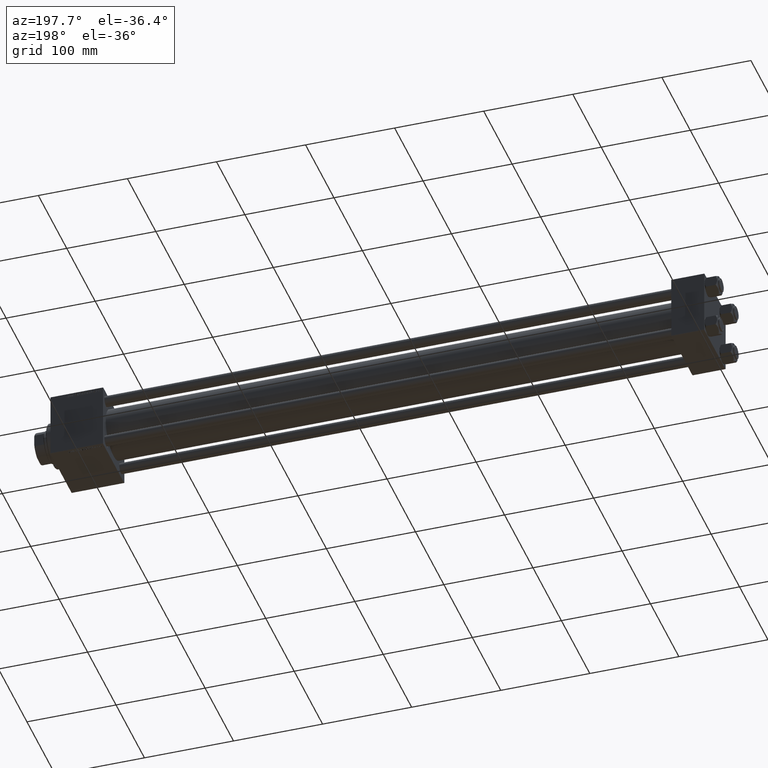
[diagram: clean part render]
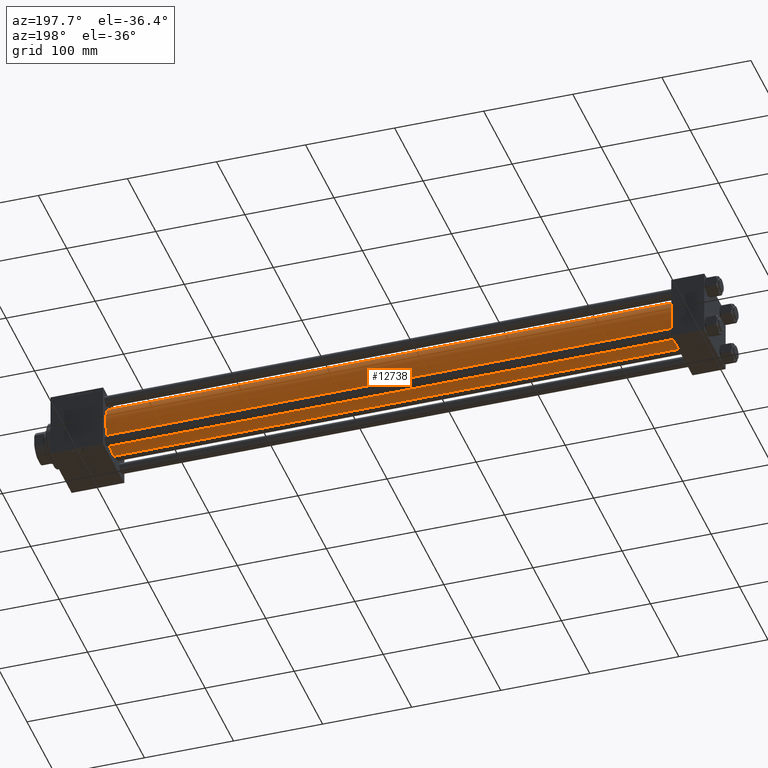
[diagram: same view with one face highlighted and labeled with its STEP entity id]
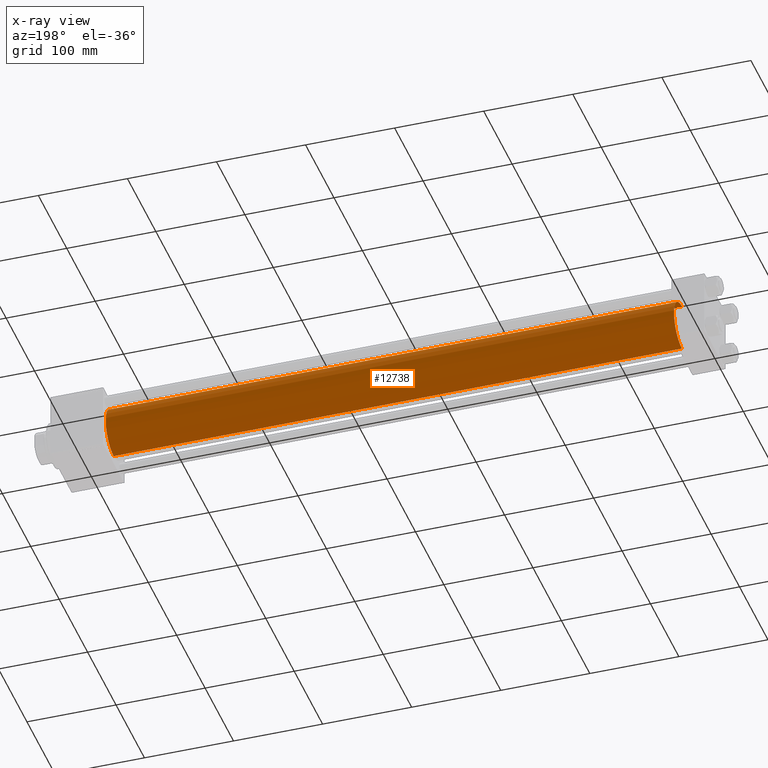
[diagram: x-ray of the same camera — body ghosted, the highlighted face saturated]
A machine part, auxiliary view. The second image highlights one B-rep face of the part: STEP entity #12738.
The next image is the same camera in x-ray: the body ghosted, the highlighted face saturated — about 0% of this face is hidden behind the body in this view.
In plain terms, the highlighted cylindrical surface (edge-blend (fillet) strip) has radius 28 mm, axis along (-1, -0, -0).
Its self-contained STEP definition (entity closure, byte-faithful):
#1403 = ORIENTED_EDGE ( 'NONE', *, *, #34192, .F. ) ;
#3519 = FACE_OUTER_BOUND ( 'NONE', #47926, .T. ) ;
#5383 = DIRECTION ( 'NONE',  ( -1.000000000000000000, -0.000000000000000000, -0.000000000000000000 ) ) ;
#5425 = ORIENTED_EDGE ( 'NONE', *, *, #49532, .T. ) ;
#7283 = CARTESIAN_POINT ( 'NONE',  ( 675.0000000000000000, -2.602085213965210642E-15, 28.00000000000000000 ) ) ;
#7846 = CYLINDRICAL_SURFACE ( 'NONE', #30862, 28.00000000000000000 ) ;
#8493 = VECTOR ( 'NONE', #36591, 1000.000000000000000 ) ;
#10161 = EDGE_CURVE ( 'NONE', #37063, #34825, #28542, .T. ) ;
#12218 = CARTESIAN_POINT ( 'NONE',  ( 37.00000000000003553, -2.602085213965210642E-15, 0.000000000000000000 ) ) ;
#12465 = EDGE_CURVE ( 'NONE', #31012, #34825, #48012, .T. ) ;
#12738 = ADVANCED_FACE ( 'NONE', ( #3519 ), #7846, .T. ) ;
#13881 = CARTESIAN_POINT ( 'NONE',  ( 675.0000000000000000, 8.269258236473784371E-16, -28.00000000000000000 ) ) ;
#14367 = ORIENTED_EDGE ( 'NONE', *, *, #12465, .T. ) ;
#19466 = AXIS2_PLACEMENT_3D ( 'NONE', #12218, #35158, #31321 ) ;
#20808 = CARTESIAN_POINT ( 'NONE',  ( 37.00000000000003553, 8.269258236473784371E-16, -28.00000000000000000 ) ) ;
#21895 = DIRECTION ( 'NONE',  ( 0.000000000000000000, 0.000000000000000000, -1.000000000000000000 ) ) ;
#24696 = AXIS2_PLACEMENT_3D ( 'NONE', #49216, #37715, #21895 ) ;
#27139 = LINE ( 'NONE', #13881, #8493 ) ;
#28542 = LINE ( 'NONE', #36480, #35657 ) ;
#30862 = AXIS2_PLACEMENT_3D ( 'NONE', #43268, #38418, #35353 ) ;
#31012 = VERTEX_POINT ( 'NONE', #20808 ) ;
#31321 = DIRECTION ( 'NONE',  ( 0.000000000000000000, 0.000000000000000000, 1.000000000000000000 ) ) ;
#34192 = EDGE_CURVE ( 'NONE', #37316, #37063, #46720, .T. ) ;
#34825 = VERTEX_POINT ( 'NONE', #38290 ) ;
#35158 = DIRECTION ( 'NONE',  ( 1.000000000000000000, -0.000000000000000000, 0.000000000000000000 ) ) ;
#35353 = DIRECTION ( 'NONE',  ( 0.000000000000000000, 0.000000000000000000, 1.000000000000000000 ) ) ;
#35657 = VECTOR ( 'NONE', #5383, 1000.000000000000000 ) ;
#36330 = ORIENTED_EDGE ( 'NONE', *, *, #10161, .F. ) ;
#36480 = CARTESIAN_POINT ( 'NONE',  ( 675.0000000000000000, -2.602085213965210642E-15, 28.00000000000000000 ) ) ;
#36591 = DIRECTION ( 'NONE',  ( -1.000000000000000000, -0.000000000000000000, -0.000000000000000000 ) ) ;
#37063 = VERTEX_POINT ( 'NONE', #7283 ) ;
#37316 = VERTEX_POINT ( 'NONE', #38067 ) ;
#37715 = DIRECTION ( 'NONE',  ( 1.000000000000000000, 0.000000000000000000, 0.000000000000000000 ) ) ;
#38067 = CARTESIAN_POINT ( 'NONE',  ( 675.0000000000000000, 8.269258236473784371E-16, -28.00000000000000000 ) ) ;
#38290 = CARTESIAN_POINT ( 'NONE',  ( 37.00000000000003553, -2.602085213965210642E-15, 28.00000000000000000 ) ) ;
#38418 = DIRECTION ( 'NONE',  ( -1.000000000000000000, -0.000000000000000000, -0.000000000000000000 ) ) ;
#43268 = CARTESIAN_POINT ( 'NONE',  ( 675.0000000000000000, -2.602085213965210642E-15, 0.000000000000000000 ) ) ;
#46720 = CIRCLE ( 'NONE', #24696, 28.00000000000000000 ) ;
#47926 = EDGE_LOOP ( 'NONE', ( #1403, #5425, #14367, #36330 ) ) ;
#48012 = CIRCLE ( 'NONE', #19466, 28.00000000000000000 ) ;
#49216 = CARTESIAN_POINT ( 'NONE',  ( 675.0000000000000000, -2.602085213965210642E-15, 0.000000000000000000 ) ) ;
#49532 = EDGE_CURVE ( 'NONE', #37316, #31012, #27139, .T. ) ;